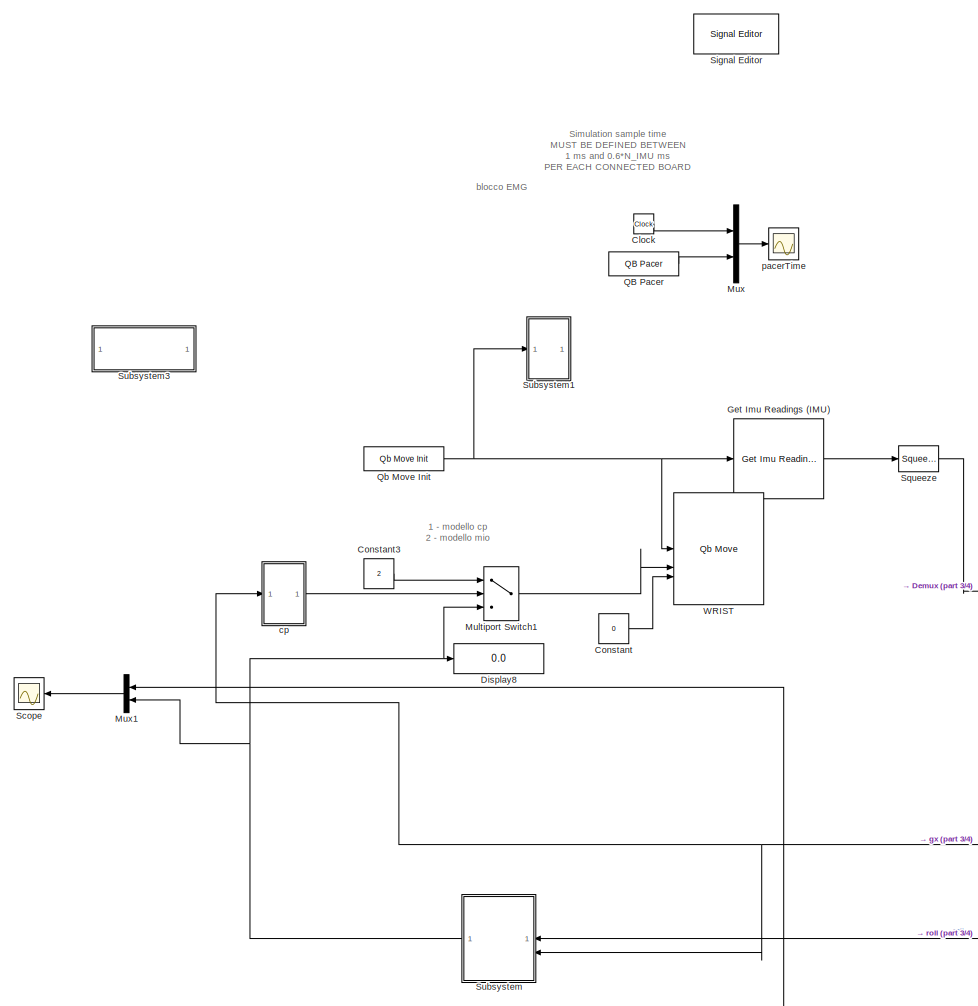
[diagram: root canvas - part 1/4, left side, full height]
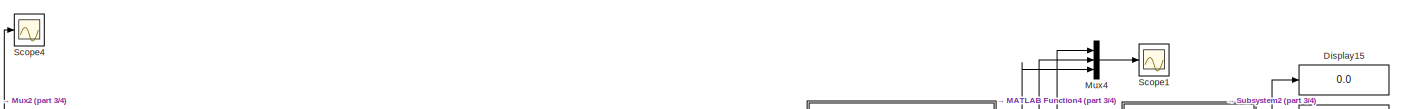
[diagram: root canvas - part 2/4, top right region]
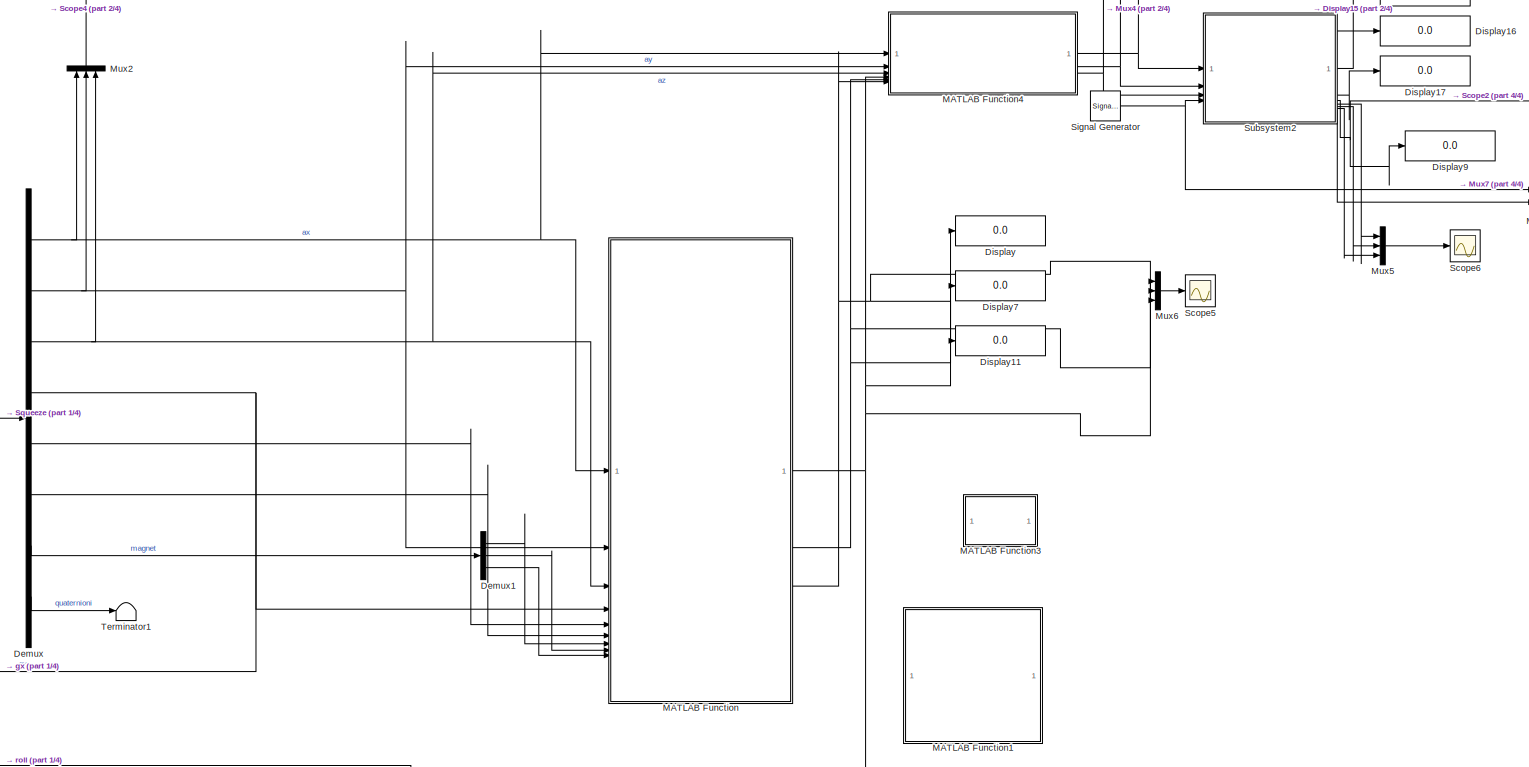
[diagram: root canvas - part 3/4, middle right region]
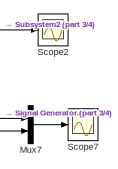
[diagram: root canvas - part 4/4, top right region]
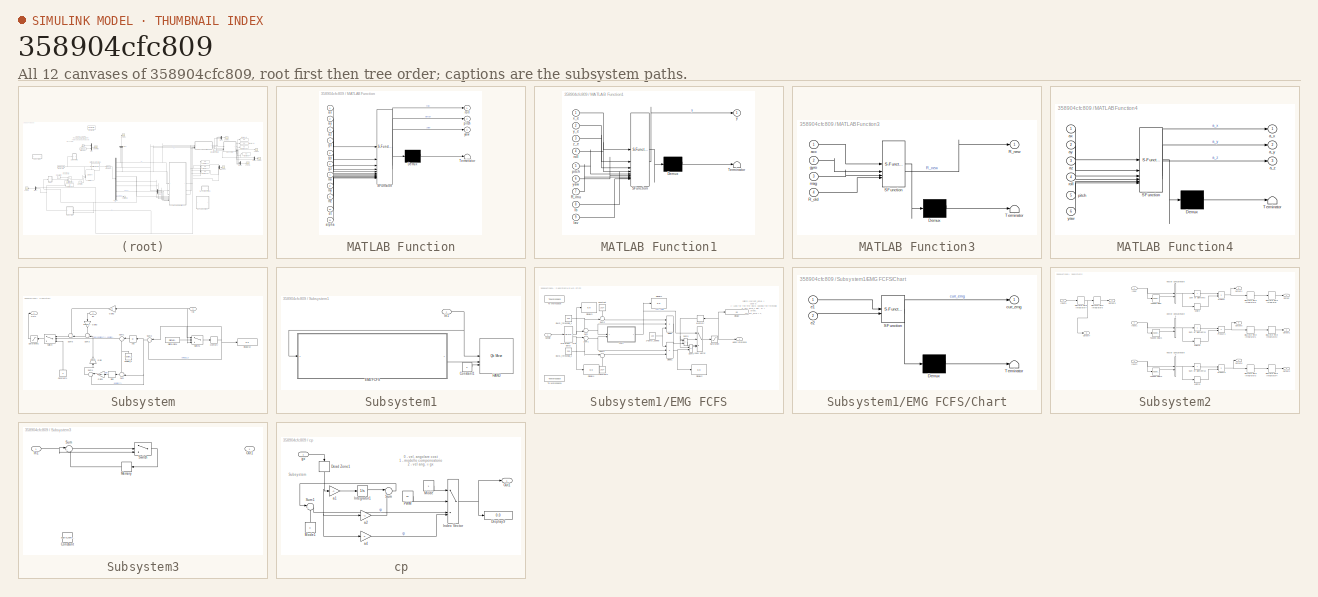
[diagram: thumbnail index - all 12 canvases of the model, root first then tree order]
MODEL slx_358904cfc809
KIND model
CONFIG AbsTol = auto
CONFIG EnableMultiTasking = on
CONFIG FixedStep = 0.01
CONFIG MaxStep = auto
CONFIG MinStep = auto
CONFIG RelTol = 1e-3
CONFIG SampleTimeConstraint = Unconstrained
CONFIG SolverName = ode1
CONFIG StartTime = 0.0
CONFIG StopTime = inf
BLOCK [Clock] Clock
BLOCK [Constant] Constant
  Value = 0
BLOCK [Constant] Constant3
  Value = 2
BLOCK [Demux] Demux
  Outputs = [1 1 1 1 1 1 3 5]
BLOCK [Demux] Demux1
  Outputs = 3
BLOCK [Display] Display
  Decimation = 1
BLOCK [Display] Display11
  Decimation = 1
BLOCK [Display] Display15
  Decimation = 1
BLOCK [Display] Display16
  Decimation = 1
BLOCK [Display] Display17
  Decimation = 1
BLOCK [Display] Display7
  Decimation = 1
BLOCK [Display] Display8
  Decimation = 1
BLOCK [Display] Display9
  Decimation = 1
BLOCK [Reference] Get Imu Readings (IMU)  REF=CP_library/Get Imu Readings (IMU)
  SourceBlock = CP_library/Get Imu Readings (IMU)
  SourceProductName = Centro Piaggio Library
  SourceType = qb get imu reading
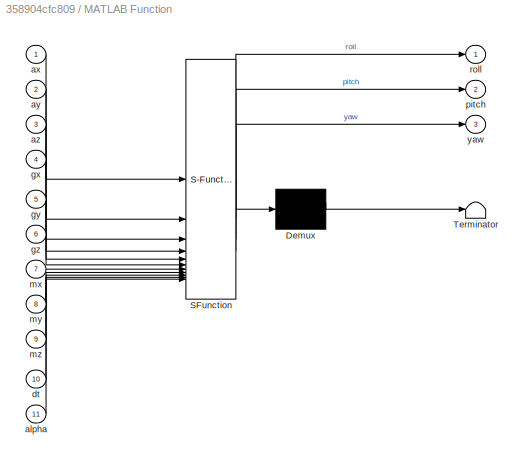
BLOCK [SubSystem] MATLAB Function
  ErrorFcn = Stateflow.Translate.translate
  PermitHierarchicalResolution = ExplicitOnly
  SFBlockType = MATLAB Function
  TreatAsAtomicUnit = on
BLOCK [Demux] MATLAB Function/ Demux 
  Outputs = 1
BLOCK [S-Function] MATLAB Function/ SFunction 
  EnableBusSupport = on
  FunctionName = sf_sfun
  PortCounts = [11 4]
  SFcnIsStateOwnerBlock = off
  SFunctionDeploymentMode = off
  Tag = Stateflow S-Function 2
BLOCK [Terminator] MATLAB Function/ Terminator 
BLOCK [Inport] MATLAB Function/alpha
  Port = 11
BLOCK [Inport] MATLAB Function/ax
BLOCK [Inport] MATLAB Function/ay
  Port = 2
BLOCK [Inport] MATLAB Function/az
  Port = 3
BLOCK [Inport] MATLAB Function/dt
  Port = 10
BLOCK [Inport] MATLAB Function/gx
  Port = 4
BLOCK [Inport] MATLAB Function/gy
  Port = 5
BLOCK [Inport] MATLAB Function/gz
  Port = 6
BLOCK [Inport] MATLAB Function/mx
  Port = 7
BLOCK [Inport] MATLAB Function/my
  Port = 8
BLOCK [Inport] MATLAB Function/mz
  Port = 9
BLOCK [Outport] MATLAB Function/pitch
  Port = 2
BLOCK [Outport] MATLAB Function/roll
BLOCK [Outport] MATLAB Function/yaw
  Port = 3
BLOCK [SubSystem] MATLAB Function1
  Commented = on
  ErrorFcn = Stateflow.Translate.translate
  PermitHierarchicalResolution = ExplicitOnly
  SFBlockType = MATLAB Function
  TreatAsAtomicUnit = on
BLOCK [Demux] MATLAB Function1/ Demux 
  Outputs = 1
BLOCK [S-Function] MATLAB Function1/ SFunction 
  EnableBusSupport = on
  FunctionName = sf_sfun
  PortCounts = [9 2]
  SFcnIsStateOwnerBlock = off
  SFunctionDeploymentMode = off
  Tag = Stateflow S-Function 1
BLOCK [Terminator] MATLAB Function1/ Terminator 
BLOCK [Inport] MATLAB Function1/R_imu
  Port = 7
BLOCK [Inport] MATLAB Function1/lav
  Port = 9
BLOCK [Inport] MATLAB Function1/lb
  Port = 8
BLOCK [Inport] MATLAB Function1/pitch
  Port = 5
BLOCK [Inport] MATLAB Function1/roll
  Port = 4
BLOCK [Inport] MATLAB Function1/x_e
BLOCK [Outport] MATLAB Function1/y
BLOCK [Inport] MATLAB Function1/y_e
  Port = 2
BLOCK [Inport] MATLAB Function1/yaw
  Port = 6
BLOCK [Inport] MATLAB Function1/z_e
  Port = 3
BLOCK [SubSystem] MATLAB Function3
  Commented = on
  ErrorFcn = Stateflow.Translate.translate
  PermitHierarchicalResolution = ExplicitOnly
  SFBlockType = MATLAB Function
  TreatAsAtomicUnit = on
BLOCK [Demux] MATLAB Function3/ Demux 
  Outputs = 1
BLOCK [S-Function] MATLAB Function3/ SFunction 
  EnableBusSupport = off
  FunctionName = sf_sfun
  PortCounts = [4 2]
  SFcnIsStateOwnerBlock = off
  SFunctionDeploymentMode = off
  Tag = Stateflow S-Function 6
BLOCK [Terminator] MATLAB Function3/ Terminator 
BLOCK [Outport] MATLAB Function3/R_new
BLOCK [Inport] MATLAB Function3/R_old
  Port = 4
BLOCK [Inport] MATLAB Function3/acc
BLOCK [Inport] MATLAB Function3/gyro
  Port = 2
BLOCK [Inport] MATLAB Function3/mag
  Port = 3
BLOCK [SubSystem] MATLAB Function4
  ErrorFcn = Stateflow.Translate.translate
  PermitHierarchicalResolution = ExplicitOnly
  SFBlockType = MATLAB Function
  TreatAsAtomicUnit = on
BLOCK [Demux] MATLAB Function4/ Demux 
  Outputs = 1
BLOCK [S-Function] MATLAB Function4/ SFunction 
  EnableBusSupport = on
  FunctionName = sf_sfun
  PortCounts = [6 4]
  SFcnIsStateOwnerBlock = off
  SFunctionDeploymentMode = off
  Tag = Stateflow S-Function 5
BLOCK [Terminator] MATLAB Function4/ Terminator 
BLOCK [Outport] MATLAB Function4/a_x
BLOCK [Outport] MATLAB Function4/a_y
  Port = 2
BLOCK [Outport] MATLAB Function4/a_z
  Port = 3
BLOCK [Inport] MATLAB Function4/ax
BLOCK [Inport] MATLAB Function4/ay
  Port = 2
BLOCK [Inport] MATLAB Function4/az
  Port = 3
BLOCK [Inport] MATLAB Function4/pitch
  Port = 5
BLOCK [Inport] MATLAB Function4/roll
  Port = 4
BLOCK [Inport] MATLAB Function4/yaw
  Port = 6
BLOCK [MultiPortSwitch] Multiport Switch1
  InputSameDT = off
  Inputs = 2
  SaturateOnIntegerOverflow = off
BLOCK [Mux] Mux
  DisplayOption = bar
  Inputs = 2
BLOCK [Mux] Mux1
  DisplayOption = bar
  Inputs = 2
BLOCK [Mux] Mux2
  DisplayOption = bar
  Inputs = 3
  NameLocation = left
BLOCK [Mux] Mux4
  DisplayOption = bar
  Inputs = 3
BLOCK [Mux] Mux5
  DisplayOption = bar
  Inputs = 3
BLOCK [Mux] Mux6
  DisplayOption = bar
  Inputs = 3
BLOCK [Mux] Mux7
  DisplayOption = bar
  Inputs = 2
BLOCK [Reference] QB Pacer  REF=QB_pacer_lib/QB Pacer
  SourceBlock = QB_pacer_lib/QB Pacer
  SourceProductName = QB Pacer
  SourceType = RealTime_Pacer
BLOCK [Reference] Qb Move Init  REF=qbmove_library/Qb Move Init
  NameLocation = top
  SourceBlock = qbmove_library/Qb Move Init
  SourceProductName = Qb Move Library
  SourceType = qb Init - ISS
BLOCK [Scope] Scope
  Floating = off
  NumInputPorts = 1
  ScopeSpecificationString = Simulink.scopes.TimeScopeBlockCfg('CurrentConfiguration', extmgr.ConfigurationSet(extmgr.Configuration('Core','General UI',true),extmgr.Configuration('Core','Source UI',true),extmgr.Configuration('Sources','WiredSimulink',true,'DataLoggingVariableName','ScopeData1'),extmgr.Configuration('Visuals','Time Domain',true,'SerializedDisplays',{struct('MinYLimReal','-224.80615','MaxYLimReal','223.36711','...<+1442ch>
BLOCK [Scope] Scope1
  Floating = off
  NumInputPorts = 1
  ScopeSpecificationString = Simulink.scopes.TimeScopeBlockCfg('CurrentConfiguration', extmgr.ConfigurationSet(extmgr.Configuration('Core','General UI',true),extmgr.Configuration('Core','Source UI',true),extmgr.Configuration('Sources','WiredSimulink',true,'DataLoggingVariableName','ScopeData1'),extmgr.Configuration('Visuals','Time Domain',true,'SerializedDisplays',{struct('MinYLimReal','-13.8912','MaxYLimReal','23.10873','YLa...<+1501ch>
BLOCK [Scope] Scope2
  Floating = off
  NumInputPorts = 1
  ScopeSpecificationString = Simulink.scopes.TimeScopeBlockCfg('CurrentConfiguration', extmgr.ConfigurationSet(extmgr.Configuration('Core','General UI',true),extmgr.Configuration('Core','Source UI',true),extmgr.Configuration('Sources','WiredSimulink',true,'DataLoggingVariableName','ScopeData1'),extmgr.Configuration('Visuals','Time Domain',true,'SerializedDisplays',{struct('MinYLimReal','-15.88874','MaxYLimReal','17.87426','YL...<+1423ch>
BLOCK [Scope] Scope4
  Floating = off
  NumInputPorts = 1
  ScopeSpecificationString = Simulink.scopes.TimeScopeBlockCfg('CurrentConfiguration', extmgr.ConfigurationSet(extmgr.Configuration('Core','General UI',true),extmgr.Configuration('Core','Source UI',true),extmgr.Configuration('Sources','WiredSimulink',true,'DataLoggingVariableName','ScopeData3'),extmgr.Configuration('Visuals','Time Domain',true,'SerializedDisplays',{struct('MinYLimReal','-2.92442','MaxYLimReal','11.83512','YLa...<+1454ch>
BLOCK [Scope] Scope5
  Floating = off
  NumInputPorts = 1
  ScopeSpecificationString = Simulink.scopes.TimeScopeBlockCfg('CurrentConfiguration', extmgr.ConfigurationSet(extmgr.Configuration('Core','General UI',true),extmgr.Configuration('Core','Source UI',true),extmgr.Configuration('Sources','WiredSimulink',true,'DataLoggingVariableName','ScopeData4'),extmgr.Configuration('Visuals','Time Domain',true,'SerializedDisplays',{struct('MinYLimReal','-224.81174','MaxYLimReal','224.05076','...<+1541ch>
BLOCK [Scope] Scope6
  Floating = off
  NumInputPorts = 1
  ScopeSpecificationString = Simulink.scopes.TimeScopeBlockCfg('CurrentConfiguration', extmgr.ConfigurationSet(extmgr.Configuration('Core','General UI',true),extmgr.Configuration('Core','Source UI',true),extmgr.Configuration('Sources','WiredSimulink',true,'DataLoggingVariableName','ScopeData1'),extmgr.Configuration('Visuals','Time Domain',true,'SerializedDisplays',{struct('MinYLimReal','-1.03126','MaxYLimReal','4.87977','YLab...<+1569ch>
BLOCK [Scope] Scope7
  Floating = off
  NumInputPorts = 1
  ScopeSpecificationString = Simulink.scopes.TimeScopeBlockCfg('CurrentConfiguration', extmgr.ConfigurationSet(extmgr.Configuration('Core','General UI',true),extmgr.Configuration('Core','Source UI',true),extmgr.Configuration('Sources','WiredSimulink',true,'DataLoggingVariableName','ScopeData1'),extmgr.Configuration('Visuals','Time Domain',true,'SerializedDisplays',{struct('MinYLimReal','-13.8912','MaxYLimReal','23.10873','YLa...<+1465ch>
BLOCK [Reference] Signal Editor  REF=SignalEditorBlockLib/Signal Editor
  Commented = on
  LibrarySourceBlock = simulink/Sources/Signal Editor
  SourceBlock = SignalEditorBlockLib/Signal Editor
  SourceType = SignalEditor
  UserDataPersistent = on
BLOCK [SignalGenerator] Signal Generator
BLOCK [Squeeze] Squeeze
BLOCK [SubSystem] Subsystem
  NameLocation = top
BLOCK [Abs] Subsystem/Abs
  SaturateOnIntegerOverflow = off
BLOCK [Constant] Subsystem/Constant1
  NameLocation = left
  Value = 0
BLOCK [DigitalClock] Subsystem/Digital Clock
  SampleTime = dt
BLOCK [Display] Subsystem/Display10
  Decimation = 1
BLOCK [Gain] Subsystem/Gain
  Gain = lambda
  NameLocation = left
BLOCK [Gain] Subsystem/Gain1
  Gain = epsilon_0
BLOCK [Gain] Subsystem/Gain2
  Gain = 0
BLOCK [Gain] Subsystem/Gain3
  Gain = lambda_feedforward
  NameLocation = left
BLOCK [Memory] Subsystem/Memory
BLOCK [Outport] Subsystem/Out1
BLOCK [Saturate] Subsystem/Saturation1
  LowerLimit = -100
  UpperLimit = 100
BLOCK [Signum] Subsystem/Sign
BLOCK [Sum] Subsystem/Sum
  Inputs = -+|
BLOCK [Sum] Subsystem/Sum1
  Inputs = |+-
BLOCK [Sum] Subsystem/Sum2
  Inputs = |+-
BLOCK [Sum] Subsystem/Sum3
  Inputs = ++|
BLOCK [Sum] Subsystem/Sum4
  Inputs = |-+
BLOCK [Sum] Subsystem/Sum5
  Inputs = ++|
BLOCK [Switch] Subsystem/Switch
  Criteria = u2 > Threshold
  InputSameDT = off
  SaturateOnIntegerOverflow = off
BLOCK [Switch] Subsystem/Switch1
  Criteria = u2 > Threshold
  InputSameDT = off
  SaturateOnIntegerOverflow = off
BLOCK [Constant] Subsystem/epsilon_0
  NameLocation = right
  Value = epsilon_0
BLOCK [Inport] Subsystem/gx
  Port = 2
BLOCK [Inport] Subsystem/roll
BLOCK [SubSystem] Subsystem1
  Commented = on
BLOCK [Constant] Subsystem1/Constant1
  Value = 0
BLOCK [SubSystem] Subsystem1/EMG FCFS
BLOCK [Constant] Subsystem1/EMG FCFS/2*EMG_speed
  Value = 100
BLOCK [SubSystem] Subsystem1/EMG FCFS/Chart
  ErrorFcn = Stateflow.Translate.translate
  PermitHierarchicalResolution = ExplicitOnly
  SFBlockType = Chart
  TreatAsAtomicUnit = on
BLOCK [Demux] Subsystem1/EMG FCFS/Chart/ Demux 
  Outputs = 1
BLOCK [S-Function] Subsystem1/EMG FCFS/Chart/ SFunction 
  EnableBusSupport = on
  FunctionName = sf_sfun
  PortCounts = [2 2]
  SFcnIsStateOwnerBlock = off
  SFunctionDeploymentMode = off
  Tag = Stateflow S-Function 3
BLOCK [Terminator] Subsystem1/EMG FCFS/Chart/ Terminator 
BLOCK [Outport] Subsystem1/EMG FCFS/Chart/curr_emg
BLOCK [Inport] Subsystem1/EMG FCFS/Chart/e1
BLOCK [Inport] Subsystem1/EMG FCFS/Chart/e2
  Port = 2
BLOCK [Constant] Subsystem1/EMG FCFS/Constant
  NameLocation = left
  Value = 1024
BLOCK [Constant] Subsystem1/EMG FCFS/Constant1
  NameLocation = right
  Value = 1024
BLOCK [Display] Subsystem1/EMG FCFS/Display
  Decimation = 1
  Format = decimal (Stored Integer)
BLOCK [Display] Subsystem1/EMG FCFS/Display1
  Decimation = 1
BLOCK [Display] Subsystem1/EMG FCFS/Display2
  Decimation = 1
BLOCK [Display] Subsystem1/EMG FCFS/Display3
  Decimation = 1
BLOCK [Display] Subsystem1/EMG FCFS/Display4
  Decimation = 1
BLOCK [Product] Subsystem1/EMG FCFS/Divide
  Inputs = /**
BLOCK [Product] Subsystem1/EMG FCFS/Divide1
  Inputs = **/
BLOCK [Constant] Subsystem1/EMG FCFS/EMG_threshold_1
  Value = 200
BLOCK [Constant] Subsystem1/EMG FCFS/EMG_threshold_2
  Value = 200
BLOCK [Outport] Subsystem1/EMG FCFS/Hand reference
BLOCK [Inport] Subsystem1/EMG FCFS/Handle
BLOCK [MultiPortSwitch] Subsystem1/EMG FCFS/Index Vector
  DataPortOrder = Zero-based contiguous
  InputSameDT = off
  SaturateOnIntegerOverflow = off
  zeroidx = on
BLOCK [Memory] Subsystem1/EMG FCFS/Memory
BLOCK [Reference] Subsystem1/EMG FCFS/QB Move - Get EMG  REF=qbmove_library/QB Move - Get EMG
  SourceBlock = qbmove_library/QB Move - Get EMG
  SourceProductName = Qb Move Library
  SourceType = qb move
BLOCK [Saturate] Subsystem1/EMG FCFS/Saturation
  LowerLimit = 0
  UpperLimit = 19000
BLOCK [Sum] Subsystem1/EMG FCFS/Sum
  Inputs = -+|
BLOCK [Sum] Subsystem1/EMG FCFS/Sum1
  Inputs = |+-
BLOCK [Sum] Subsystem1/EMG FCFS/Sum2
  Inputs = +-|
BLOCK [Sum] Subsystem1/EMG FCFS/Sum3
  IconShape = rectangular
BLOCK [Sum] Subsystem1/EMG FCFS/Sum4
  Inputs = |-+
BLOCK [Sum] Subsystem1/EMG FCFS/Sum5
  IconShape = rectangular
  Inputs = +-
BLOCK [ToWorkspace] Subsystem1/EMG FCFS/To Workspace
  Commented = on
  FixptAsFi = on
  MaxDataPoints = inf
  SampleTime = -1
  SaveFormat = Timeseries
  VariableName = simout_EMG1
BLOCK [ToWorkspace] Subsystem1/EMG FCFS/To Workspace1
  Commented = on
  FixptAsFi = on
  MaxDataPoints = inf
  SampleTime = -1
  SaveFormat = Timeseries
  VariableName = simout_EMG2
BLOCK [Reference] Subsystem1/HAND  REF=qbmove_library/Qb Move
  SourceBlock = qbmove_library/Qb Move
  SourceProductName = Qb Move Library
  SourceType = qb move
BLOCK [Inport] Subsystem1/In1
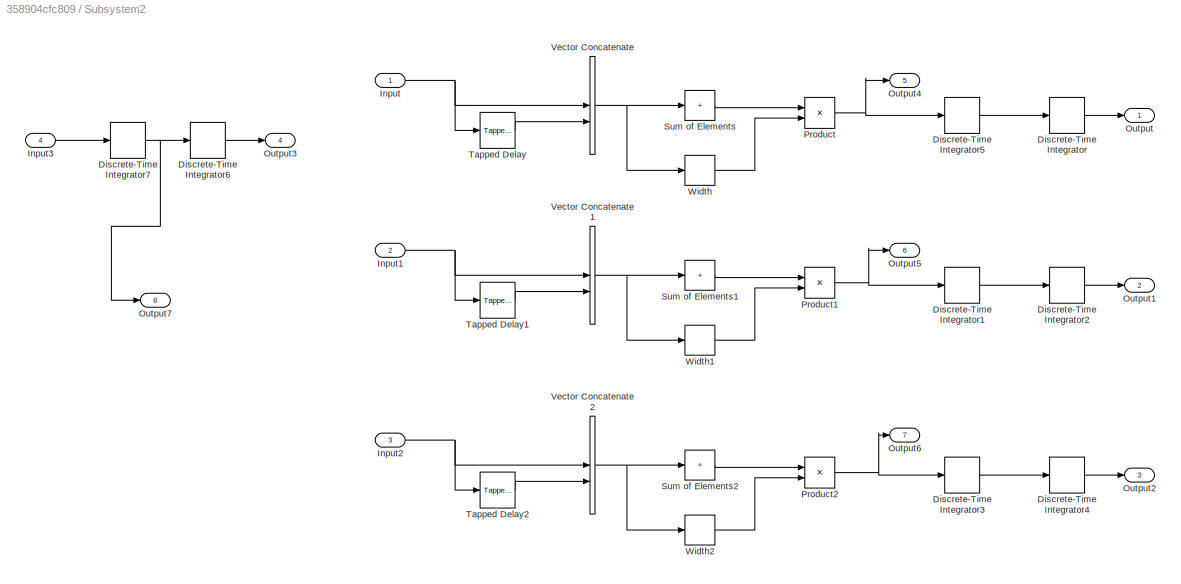
BLOCK [SubSystem] Subsystem2
BLOCK [DiscreteIntegrator] Subsystem2/Discrete-Time Integrator
  ICPrevOutput = DiscIntNeverNeededParam
  ICPrevScaledInput = DiscIntNeverNeededParam
  InitialConditionSetting = Auto
  SampleTime = -1
BLOCK [DiscreteIntegrator] Subsystem2/Discrete-Time Integrator1
  ICPrevOutput = DiscIntNeverNeededParam
  ICPrevScaledInput = DiscIntNeverNeededParam
  InitialConditionSetting = Auto
  SampleTime = -1
BLOCK [DiscreteIntegrator] Subsystem2/Discrete-Time Integrator2
  ICPrevOutput = DiscIntNeverNeededParam
  ICPrevScaledInput = DiscIntNeverNeededParam
  InitialConditionSetting = Auto
  SampleTime = -1
BLOCK [DiscreteIntegrator] Subsystem2/Discrete-Time Integrator3
  ICPrevOutput = DiscIntNeverNeededParam
  ICPrevScaledInput = DiscIntNeverNeededParam
  InitialConditionSetting = Auto
  SampleTime = -1
BLOCK [DiscreteIntegrator] Subsystem2/Discrete-Time Integrator4
  ICPrevOutput = DiscIntNeverNeededParam
  ICPrevScaledInput = DiscIntNeverNeededParam
  InitialConditionSetting = Auto
  SampleTime = -1
BLOCK [DiscreteIntegrator] Subsystem2/Discrete-Time Integrator5
  ICPrevOutput = DiscIntNeverNeededParam
  ICPrevScaledInput = DiscIntNeverNeededParam
  InitialConditionSetting = Auto
  SampleTime = -1
BLOCK [DiscreteIntegrator] Subsystem2/Discrete-Time Integrator6
  ICPrevOutput = DiscIntNeverNeededParam
  ICPrevScaledInput = DiscIntNeverNeededParam
  InitialConditionSetting = Auto
  SampleTime = -1
BLOCK [DiscreteIntegrator] Subsystem2/Discrete-Time Integrator7
  ICPrevOutput = DiscIntNeverNeededParam
  ICPrevScaledInput = DiscIntNeverNeededParam
  InitialConditionSetting = Auto
  SampleTime = -1
BLOCK [Inport] Subsystem2/Input
BLOCK [Inport] Subsystem2/Input1
  Port = 2
BLOCK [Inport] Subsystem2/Input2
  Port = 3
BLOCK [Inport] Subsystem2/Input3
  Port = 4
BLOCK [Outport] Subsystem2/Output
BLOCK [Outport] Subsystem2/Output1
  Port = 2
BLOCK [Outport] Subsystem2/Output2
  Port = 3
BLOCK [Outport] Subsystem2/Output3
  Port = 4
BLOCK [Outport] Subsystem2/Output4
  Port = 5
BLOCK [Outport] Subsystem2/Output5
  Port = 6
BLOCK [Outport] Subsystem2/Output6
  Port = 7
BLOCK [Outport] Subsystem2/Output7
  Port = 8
BLOCK [Product] Subsystem2/Product
  Inputs = */
BLOCK [Product] Subsystem2/Product1
  Inputs = */
BLOCK [Product] Subsystem2/Product2
  Inputs = */
BLOCK [Sum] Subsystem2/Sum of Elements
  IconShape = rectangular
  Inputs = +
BLOCK [Sum] Subsystem2/Sum of Elements1
  IconShape = rectangular
  Inputs = +
BLOCK [Sum] Subsystem2/Sum of Elements2
  IconShape = rectangular
  Inputs = +
BLOCK [Reference] Subsystem2/Tapped Delay  REF=simulink/Discrete/Tapped Delay
  SourceBlock = simulink/Discrete/Tapped Delay
  SourceType = Tapped Delay Line
BLOCK [Reference] Subsystem2/Tapped Delay1  REF=simulink/Discrete/Tapped Delay
  SourceBlock = simulink/Discrete/Tapped Delay
  SourceType = Tapped Delay Line
BLOCK [Reference] Subsystem2/Tapped Delay2  REF=simulink/Discrete/Tapped Delay
  SourceBlock = simulink/Discrete/Tapped Delay
  SourceType = Tapped Delay Line
BLOCK [Concatenate] Subsystem2/Vector Concatenate
BLOCK [Concatenate] Subsystem2/Vector Concatenate1
BLOCK [Concatenate] Subsystem2/Vector Concatenate2
BLOCK [Width] Subsystem2/Width
BLOCK [Width] Subsystem2/Width1
BLOCK [Width] Subsystem2/Width2
BLOCK [SubSystem] Subsystem3
BLOCK [Constant] Subsystem3/Constant
  Value = soglia_nonlin
BLOCK [Inport] Subsystem3/In1
BLOCK [Memory] Subsystem3/Memory
BLOCK [Outport] Subsystem3/Out1
BLOCK [Sum] Subsystem3/Sum
  Inputs = |+-
BLOCK [Switch] Subsystem3/Switch
  Criteria = u2 > Threshold
  InputSameDT = off
  SaturateOnIntegerOverflow = off
  Threshold = soglia_nonlin
BLOCK [Terminator] Terminator1
BLOCK [Reference] WRIST  REF=qbmove_library/Qb Move
  SourceBlock = qbmove_library/Qb Move
  SourceProductName = Qb Move Library
  SourceType = qb move
BLOCK [SubSystem] cp
  Commented = on
BLOCK [DeadZone] cp/Dead Zone1
  LinearizeAsGain = off
  LowerValue = -5
  NameLocation = left
  UpperValue = 5
BLOCK [Display] cp/Display9
  Decimation = 1
BLOCK [MultiPortSwitch] cp/Index Vector
  DataPortOrder = Zero-based contiguous
  InputSameDT = off
  SaturateOnIntegerOverflow = off
  zeroidx = on
BLOCK [Integrator] cp/Integrator1
BLOCK [Constant] cp/Mode
BLOCK [Constant] cp/Mode1
  NameLocation = right
  Value = 0
BLOCK [Outport] cp/Out1
BLOCK [Constant] cp/PWM
  Value = 50
BLOCK [Sum] cp/Sum
  Inputs = |++
BLOCK [Sum] cp/Sum1
  Inputs = |+-
BLOCK [Gain] cp/a1
  Gain = -2
BLOCK [Gain] cp/a2
  Gain = -1
BLOCK [Gain] cp/a4
BLOCK [Inport] cp/gx
BLOCK [Scope] pacerTime
  Floating = off
  NumInputPorts = 1
  ScopeSpecificationString = Simulink.scopes.TimeScopeBlockCfg('CurrentConfiguration', extmgr.ConfigurationSet(extmgr.Configuration('Core','General UI',true),extmgr.Configuration('Core','Source UI',true),extmgr.Configuration('Sources','WiredSimulink',true,'DataLoggingVariableName','ScopeData3','DataLoggingSaveFormat','Array','DataLoggingDecimation','1','DataLoggingDecimateData',true),extmgr.Configuration('Visuals','Time Domai...<+1531ch>
ANNOTATION (root): 1 - modello cp 2 - modello mio
ANNOTATION (root): blocco EMG
ANNOTATION (root): Simulation sample time MUST BE DEFINED BETWEEN 1 ms and 0.6*N_IMU ms PER EACH CONNECTED BOARD
ANNOTATION Subsystem1/EMG FCFS: switch (current_emg) { case 0: // Look for the first EMG passing the threshold if (err_emg_1 > 0) { current_emg = 1; break; } if (err_emg_2 > 0) { current_emg = 2; break; } break; case 1: // EMG 1 is first if (err_emg_1 < 0) { current_emg = 0; break; } g_ref.pos[0] += (err_emg_1 * g_mem.emg_speed * 2) / (1024 - c_mem.emg_threshold[0]); break; case 2: // EMG 2 is first if (err_emg_2 < 0) { current_...<+127ch>
ANNOTATION cp: 0 - vel. angolare cost 1 - modello compensatorio 2 - vel ang. = gx
ANNOTATION cp: Subsystem
LINE Clock:1 -> Mux:1
LINE Constant3:1 -> Multiport Switch1:1
LINE Constant:1 -> WRIST:3
LINE Demux1:1 -> MATLAB Function:7
LINE Demux1:2 -> MATLAB Function:8
LINE Demux1:3 -> MATLAB Function:9
NET Demux:1 -> MATLAB Function4:1, MATLAB Function:1, Mux2:1
NET Demux:2 -> MATLAB Function4:2, MATLAB Function:2, Mux2:2
NET Demux:3 -> MATLAB Function4:3, MATLAB Function:3, Mux2:3
NET Demux:4 -> MATLAB Function:4, Subsystem:2, cp:1
LINE Demux:5 -> MATLAB Function:5
LINE Demux:6 -> MATLAB Function:6
LINE Demux:7 -> Demux1:1
LINE Demux:8 -> Terminator1:1
LINE Get Imu Readings (IMU):1 -> Squeeze:1
NET MATLAB Function4:1 -> Mux4:1, Subsystem2:1
NET MATLAB Function4:2 -> Mux4:2, Subsystem2:2
NET MATLAB Function4:3 -> Mux4:3, Subsystem2:3
NET MATLAB Function:1 -> Display:1, MATLAB Function4:4, Mux1:1, Mux6:1, Subsystem:1
NET MATLAB Function:2 -> Display7:1, MATLAB Function4:5, Mux6:2
NET MATLAB Function:3 -> Display11:1, MATLAB Function4:6, Mux6:3
LINE Multiport Switch1:1 -> WRIST:2
LINE Mux1:1 -> Scope:1
LINE Mux2:1 -> Scope4:1
LINE Mux4:1 -> Scope1:1
LINE Mux5:1 -> Scope6:1
LINE Mux6:1 -> Scope5:1
LINE Mux7:1 -> Scope7:1
LINE Mux:1 -> pacerTime:1
LINE QB Pacer:1 -> Mux:2
NET Qb Move Init:1 -> Get Imu Readings (IMU):1, Subsystem1:1, WRIST:1
NET Signal Generator:1 -> Mux7:1, Subsystem2:4
LINE Squeeze:1 -> Demux:1
LINE Subsystem/Abs:1 -> Subsystem/Sum1:1
LINE Subsystem/Constant1:1 -> Subsystem/Switch:3
LINE Subsystem/Digital Clock:1 -> Subsystem/Switch1:2
LINE Subsystem/Gain1:1 -> Subsystem/Sum4:1
LINE Subsystem/Gain2:1 -> Subsystem/Sum5:1
LINE Subsystem/Gain3:1 -> Subsystem/Sum3:1
LINE Subsystem/Gain:1 -> Subsystem/Sum3:2
NET Subsystem/Memory:1 -> Subsystem/Display10:1, Subsystem/Sum2:2, Subsystem/Switch1:1
LINE Subsystem/Saturation1:1 -> Subsystem/Out1:1
LINE Subsystem/Sign:1 -> Subsystem/Gain1:1
LINE Subsystem/Sum1:1 -> Subsystem/Switch:2
NET Subsystem/Sum2:1 -> Subsystem/Abs:1, Subsystem/Sum4:2, Subsystem/Sum:2
LINE Subsystem/Sum3:1 -> Subsystem/Sum5:2
LINE Subsystem/Sum4:1 -> Subsystem/Gain:1
LINE Subsystem/Sum5:1 -> Subsystem/Switch:1
LINE Subsystem/Sum:1 -> Subsystem/Sign:1
LINE Subsystem/Switch1:1 -> Subsystem/Memory:1
LINE Subsystem/Switch:1 -> Subsystem/Saturation1:1
NET Subsystem/epsilon_0:1 -> Subsystem/Sum1:2, Subsystem/Sum:1
LINE Subsystem/gx:1 -> Subsystem/Gain3:1
NET Subsystem/roll:1 -> Subsystem/Gain2:1, Subsystem/Sum2:1, Subsystem/Switch1:3
LINE Subsystem1/Constant1:1 -> Subsystem1/HAND:3
NET Subsystem1/EMG FCFS/2*EMG_speed:1 -> Subsystem1/EMG FCFS/Divide1:1, Subsystem1/EMG FCFS/Divide:3
NET Subsystem1/EMG FCFS/Chart:1 -> Subsystem1/EMG FCFS/Display1:1, Subsystem1/EMG FCFS/Index Vector:1
LINE Subsystem1/EMG FCFS/Constant1:1 -> Subsystem1/EMG FCFS/Sum4:2
LINE Subsystem1/EMG FCFS/Constant:1 -> Subsystem1/EMG FCFS/Sum2:1
NET Subsystem1/EMG FCFS/Divide1:1 -> Subsystem1/EMG FCFS/Display2:1, Subsystem1/EMG FCFS/Sum5:2
LINE Subsystem1/EMG FCFS/Divide:1 -> Subsystem1/EMG FCFS/Sum3:2
NET Subsystem1/EMG FCFS/EMG_threshold_1:1 -> Subsystem1/EMG FCFS/Sum2:2, Subsystem1/EMG FCFS/Sum:1
NET Subsystem1/EMG FCFS/EMG_threshold_2:1 -> Subsystem1/EMG FCFS/Sum1:2, Subsystem1/EMG FCFS/Sum4:1
LINE Subsystem1/EMG FCFS/Handle:1 -> Subsystem1/EMG FCFS/QB Move - Get EMG:1
LINE Subsystem1/EMG FCFS/Index Vector:1 -> Subsystem1/EMG FCFS/Saturation:1
NET Subsystem1/EMG FCFS/Memory:1 -> Subsystem1/EMG FCFS/Index Vector:2, Subsystem1/EMG FCFS/Sum3:1, Subsystem1/EMG FCFS/Sum5:1
NET Subsystem1/EMG FCFS/QB Move - Get EMG:1 -> Subsystem1/EMG FCFS/Display3:1, Subsystem1/EMG FCFS/Sum:2
NET Subsystem1/EMG FCFS/QB Move - Get EMG:2 -> Subsystem1/EMG FCFS/Display4:1, Subsystem1/EMG FCFS/Sum1:1
NET Subsystem1/EMG FCFS/Saturation:1 -> Subsystem1/EMG FCFS/Display:1, Subsystem1/EMG FCFS/Hand reference:1, Subsystem1/EMG FCFS/Memory:1
NET Subsystem1/EMG FCFS/Sum1:1 -> Subsystem1/EMG FCFS/Chart:2, Subsystem1/EMG FCFS/Divide1:2
LINE Subsystem1/EMG FCFS/Sum2:1 -> Subsystem1/EMG FCFS/Divide:1
LINE Subsystem1/EMG FCFS/Sum3:1 -> Subsystem1/EMG FCFS/Index Vector:3
LINE Subsystem1/EMG FCFS/Sum4:1 -> Subsystem1/EMG FCFS/Divide1:3
LINE Subsystem1/EMG FCFS/Sum5:1 -> Subsystem1/EMG FCFS/Index Vector:4
NET Subsystem1/EMG FCFS/Sum:1 -> Subsystem1/EMG FCFS/Chart:1, Subsystem1/EMG FCFS/Divide:2
LINE Subsystem1/EMG FCFS:1 -> Subsystem1/HAND:2
NET Subsystem1/In1:1 -> Subsystem1/EMG FCFS:1, Subsystem1/HAND:1
LINE Subsystem2/Discrete-Time Integrator1:1 -> Subsystem2/Discrete-Time Integrator2:1
LINE Subsystem2/Discrete-Time Integrator2:1 -> Subsystem2/Output1:1
LINE Subsystem2/Discrete-Time Integrator3:1 -> Subsystem2/Discrete-Time Integrator4:1
LINE Subsystem2/Discrete-Time Integrator4:1 -> Subsystem2/Output2:1
LINE Subsystem2/Discrete-Time Integrator5:1 -> Subsystem2/Discrete-Time Integrator:1
LINE Subsystem2/Discrete-Time Integrator6:1 -> Subsystem2/Output3:1
NET Subsystem2/Discrete-Time Integrator7:1 -> Subsystem2/Discrete-Time Integrator6:1, Subsystem2/Output7:1
LINE Subsystem2/Discrete-Time Integrator:1 -> Subsystem2/Output:1
NET Subsystem2/Input1:1 -> Subsystem2/Tapped Delay1:1, Subsystem2/Vector Concatenate1:1
NET Subsystem2/Input2:1 -> Subsystem2/Tapped Delay2:1, Subsystem2/Vector Concatenate2:1
LINE Subsystem2/Input3:1 -> Subsystem2/Discrete-Time Integrator7:1
NET Subsystem2/Input:1 -> Subsystem2/Tapped Delay:1, Subsystem2/Vector Concatenate:1
NET Subsystem2/Product1:1 -> Subsystem2/Discrete-Time Integrator1:1, Subsystem2/Output5:1
NET Subsystem2/Product2:1 -> Subsystem2/Discrete-Time Integrator3:1, Subsystem2/Output6:1
NET Subsystem2/Product:1 -> Subsystem2/Discrete-Time Integrator5:1, Subsystem2/Output4:1
LINE Subsystem2/Sum of Elements1:1 -> Subsystem2/Product1:1
LINE Subsystem2/Sum of Elements2:1 -> Subsystem2/Product2:1
LINE Subsystem2/Sum of Elements:1 -> Subsystem2/Product:1
LINE Subsystem2/Tapped Delay1:1 -> Subsystem2/Vector Concatenate1:2
LINE Subsystem2/Tapped Delay2:1 -> Subsystem2/Vector Concatenate2:2
LINE Subsystem2/Tapped Delay:1 -> Subsystem2/Vector Concatenate:2
NET Subsystem2/Vector Concatenate1:1 -> Subsystem2/Sum of Elements1:1, Subsystem2/Width1:1
NET Subsystem2/Vector Concatenate2:1 -> Subsystem2/Sum of Elements2:1, Subsystem2/Width2:1
NET Subsystem2/Vector Concatenate:1 -> Subsystem2/Sum of Elements:1, Subsystem2/Width:1
LINE Subsystem2/Width1:1 -> Subsystem2/Product1:2
LINE Subsystem2/Width2:1 -> Subsystem2/Product2:2
LINE Subsystem2/Width:1 -> Subsystem2/Product:2
LINE Subsystem2:1 -> Display15:1
LINE Subsystem2:2 -> Display16:1
LINE Subsystem2:3 -> Display17:1
NET Subsystem2:4 -> Display9:1, Scope2:1
LINE Subsystem2:5 -> Mux5:1
LINE Subsystem2:6 -> Mux5:2
LINE Subsystem2:7 -> Mux5:3
LINE Subsystem2:8 -> Mux7:2
NET Subsystem3/In1:1 -> Subsystem3/Sum:1, Subsystem3/Switch:3
LINE Subsystem3/Memory:1 -> Subsystem3/Sum:2
LINE Subsystem3/Sum:1 -> Subsystem3/Switch:2
LINE Subsystem3/Switch:1 -> Subsystem3/Memory:1
NET Subsystem:1 -> Display8:1, Multiport Switch1:3, Mux1:2
NET cp/Dead Zone1:1 -> cp/a1:1, cp/a2:1, cp/a4:1
NET cp/Index Vector:1 -> cp/Display9:1, cp/Out1:1
LINE cp/Integrator1:1 -> cp/Sum:1
LINE cp/Mode1:1 -> cp/Sum1:2
LINE cp/Mode:1 -> cp/Index Vector:1
LINE cp/PWM:1 -> cp/Index Vector:2
LINE cp/Sum1:1 -> cp/Index Vector:3
LINE cp/Sum:1 -> cp/Sum1:1
LINE cp/a1:1 -> cp/Integrator1:1
LINE cp/a2:1 -> cp/Sum:2
LINE cp/a4:1 -> cp/Index Vector:4
LINE cp/gx:1 -> cp/Dead Zone1:1
LINE cp:1 -> Multiport Switch1:2
note: NET lines group one-source signal fan-out (src -> all destinations, sorted); 1:1 wires keep LINE
CHART MATLAB Function1 states=1 transitions=1
  STATE_LABEL 'eML_blk_kernel()'
  STATE_LABEL 'SCRIPT:\nfunction y = jacobians(x_e , y_e , z_e ,roll, pitch, yaw, R_imu, lb , lav)\n\n\nrotation_matrix\n\nJ1= [0;\n    -lb*cosd(theta3)-lav*cosd(theta3+theta6);\n    lb*cosd(theta2)+lav*cosd(theta2+theta5);\n    1;\n    0;\n    0];\n\nJ2= [lb*cosd(theta3)+lav*cosd(theta3+theta6);\n    0;\n    -lb*cosd(theta1)-lav*cosd(theta1+theta4);\n    0;\n    1;\n    0];\n\nJ3 = [-lb*cosd(theta2)-lav*cosd(theta2+theta5);\n      ...<+444ch>'
CHART MATLAB Function states=1 transitions=1
  STATE_LABEL 'eML_blk_kernel()'
  STATE_LABEL 'SCRIPT:\n% function [roll, pitch, yaw] = fusione(ax, ay, az, gx, gy, gz, mx, my, mz, dt, alpha)\n% \n% \n% accelReadings = [ax , ay , az];\n% gyroReadings = [gx , gy , gz];\n% magReadings = [mx , my , mz];\n% \n% \n% fuse = complementaryFilter;\n% \n% [orientation,angularVelocity] = fuse(accelReadings,gyroReadings,magReadings\n% \n% eul = quat2eul(orientation)\n% \n% roll = eul(1);\n% pitch = eul(2);\n% yaw = eul(...<+3423ch>'
CHART Subsystem1/EMG FCFS/Chart states=3 transitions=5
  STATE_LABEL 'State0\nentry: curr_emg = 0;'
  STATE_LABEL 'State1\nentry: curr_emg = 1;'
  STATE_LABEL 'State2\nentry: curr_emg = 2;'
CHART MATLAB Function4 states=1 transitions=1
  STATE_LABEL 'eML_blk_kernel()'
  STATE_LABEL 'SCRIPT:\nfunction [a_x, a_y, a_z ] = removeGravity(ax, ay, az, roll, pitch, yaw)\n    gravity = [0; 0; 9.81]; % 3x1\n    acc= [ax ay az]; %1x3\n   % \n   % roll = roll + 180;\n   % pitch = pitch +180;\n   % yaw = yaw + 180;\n   % \n\n    Rx = [1, 0, 0;\n          0, cosd(roll), -sind(roll);\n          0, sind(roll), cosd(roll)];\n      \n    Ry = [cosd(pitch), 0, sind(pitch);\n          0, 1, 0;\n          -sind(...<+453ch>'
CHART MATLAB Function3 states=1 transitions=1
  STATE_LABEL 'eML_blk_kernel()'
  STATE_LABEL "SCRIPT:\nfunction R_new = mh_filter(acc, gyro, mag, R_old)\n\nax = acc(1);\nay = acc(2);\naz = acc(3);\n\ngx = gyro(1);\ngy = gyro(2);\ngz = gyro(3);\n\nmx = mag(1);\nmy = mag(2);\nmy = mag(3);\n\n% normalizzo vettori di campo magnetico e gravitazionale\n\nabn = acc(1 , :)./abs(acc(1 , :));\nmbn = mag(1 , :)./abs(mag(1 , :));\n\n\n%considero un reference frame classico , levogiro con z verso l'alto\n%calcolo  vettore g...<+21ch>"
CHART  states=0 transitions=0
CHART  states=0 transitions=0
CHART  states=0 transitions=0
CHART  states=0 transitions=0
CHART  states=0 transitions=0
